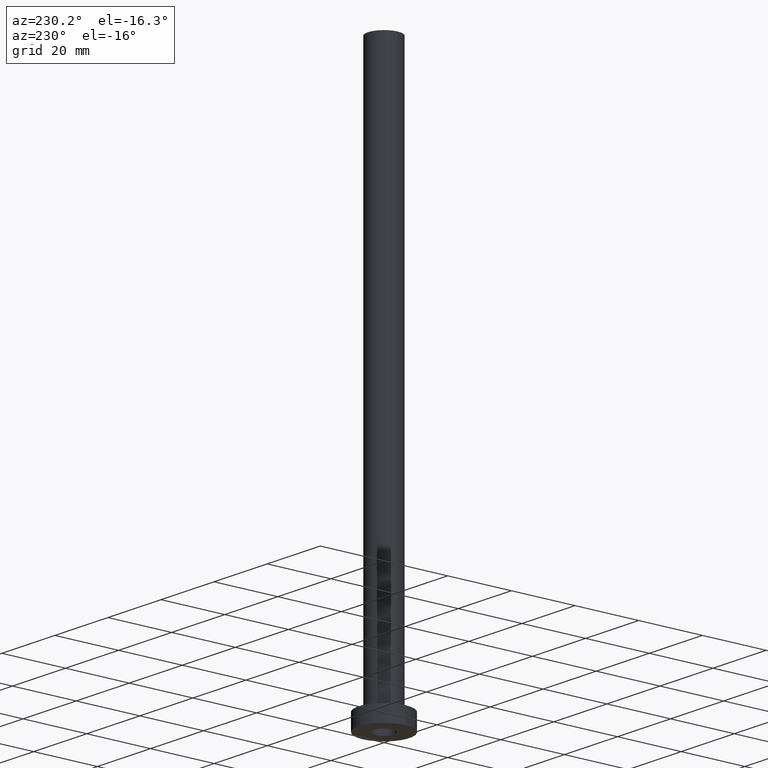
[diagram: clean part render]
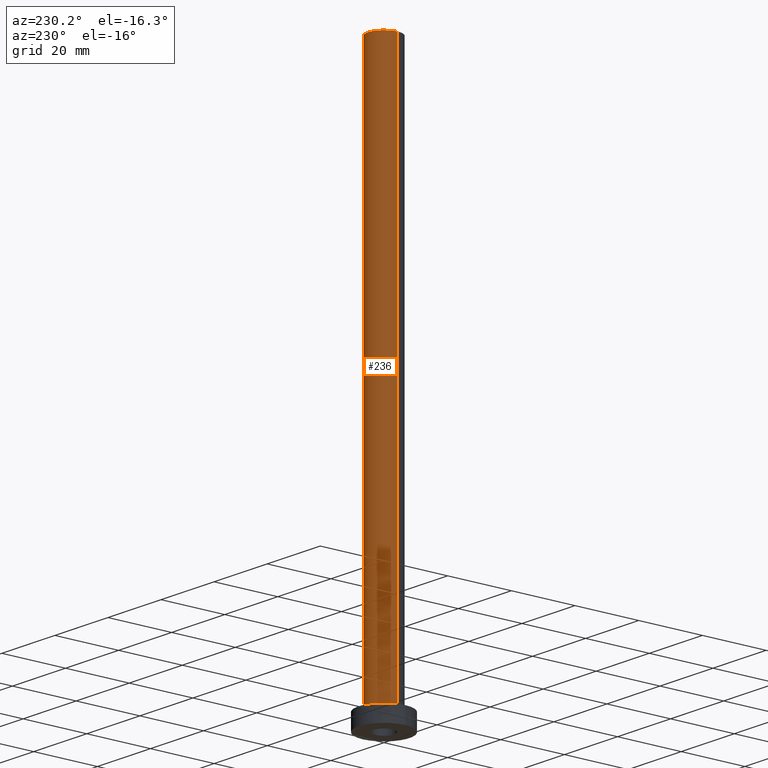
[diagram: same view with one face highlighted and labeled with its STEP entity id]
A machine part, auxiliary view. The second image highlights one B-rep face of the part: STEP entity #236.
In plain terms, the highlighted cylindrical surface (edge-blend (fillet) strip) has radius 5 mm, axis along (-0, -0, -1).
Its self-contained STEP definition (entity closure, byte-faithful):
#15 = DIRECTION ( 'NONE',  ( 0.000000000000000000, 0.000000000000000000, 1.000000000000000000 ) ) ;
#20 = ORIENTED_EDGE ( 'NONE', *, *, #306, .T. ) ;
#21 = CARTESIAN_POINT ( 'NONE',  ( 5.000000000000000000, 6.123233995736766282E-16, 175.0000000000000284 ) ) ;
#26 = EDGE_LOOP ( 'NONE', ( #192, #369, #20, #232 ) ) ;
#45 = CARTESIAN_POINT ( 'NONE',  ( -5.000000000000000000, 0.000000000000000000, 175.0000000000000284 ) ) ;
#50 = CARTESIAN_POINT ( 'NONE',  ( 0.000000000000000000, 0.000000000000000000, 175.0000000000000284 ) ) ;
#60 = CARTESIAN_POINT ( 'NONE',  ( -5.000000000000000000, 0.000000000000000000, 175.0000000000000284 ) ) ;
#62 = FACE_OUTER_BOUND ( 'NONE', #26, .T. ) ;
#93 = AXIS2_PLACEMENT_3D ( 'NONE', #420, #372, #336 ) ;
#115 = DIRECTION ( 'NONE',  ( -0.000000000000000000, -0.000000000000000000, -1.000000000000000000 ) ) ;
#127 = CARTESIAN_POINT ( 'NONE',  ( 0.000000000000000000, 0.000000000000000000, 5.500000000000005329 ) ) ;
#137 = CARTESIAN_POINT ( 'NONE',  ( 5.000000000000000000, 6.123233995736766282E-16, 5.500000000000005329 ) ) ;
#143 = CARTESIAN_POINT ( 'NONE',  ( -5.000000000000000000, 0.000000000000000000, 5.500000000000005329 ) ) ;
#159 = VERTEX_POINT ( 'NONE', #143 ) ;
#162 = EDGE_CURVE ( 'NONE', #246, #417, #285, .T. ) ;
#175 = EDGE_CURVE ( 'NONE', #246, #423, #270, .T. ) ;
#192 = ORIENTED_EDGE ( 'NONE', *, *, #175, .F. ) ;
#198 = DIRECTION ( 'NONE',  ( -0.000000000000000000, -0.000000000000000000, -1.000000000000000000 ) ) ;
#232 = ORIENTED_EDGE ( 'NONE', *, *, #251, .F. ) ;
#236 = ADVANCED_FACE ( 'NONE', ( #62 ), #276, .T. ) ;
#246 = VERTEX_POINT ( 'NONE', #21 ) ;
#251 = EDGE_CURVE ( 'NONE', #423, #159, #304, .T. ) ;
#264 = DIRECTION ( 'NONE',  ( 0.000000000000000000, 0.000000000000000000, 1.000000000000000000 ) ) ;
#270 = CIRCLE ( 'NONE', #387, 5.000000000000000000 ) ;
#276 = CYLINDRICAL_SURFACE ( 'NONE', #93, 5.000000000000000000 ) ;
#285 = LINE ( 'NONE', #427, #436 ) ;
#304 = LINE ( 'NONE', #60, #351 ) ;
#306 = EDGE_CURVE ( 'NONE', #417, #159, #388, .T. ) ;
#336 = DIRECTION ( 'NONE',  ( -1.000000000000000000, 0.000000000000000000, 0.000000000000000000 ) ) ;
#351 = VECTOR ( 'NONE', #198, 1000.000000000000000 ) ;
#365 = DIRECTION ( 'NONE',  ( 1.000000000000000000, 0.000000000000000000, 0.000000000000000000 ) ) ;
#369 = ORIENTED_EDGE ( 'NONE', *, *, #162, .T. ) ;
#372 = DIRECTION ( 'NONE',  ( -0.000000000000000000, -0.000000000000000000, -1.000000000000000000 ) ) ;
#387 = AXIS2_PLACEMENT_3D ( 'NONE', #50, #15, #365 ) ;
#388 = CIRCLE ( 'NONE', #415, 5.000000000000000000 ) ;
#408 = DIRECTION ( 'NONE',  ( 1.000000000000000000, 0.000000000000000000, 0.000000000000000000 ) ) ;
#415 = AXIS2_PLACEMENT_3D ( 'NONE', #127, #264, #408 ) ;
#417 = VERTEX_POINT ( 'NONE', #137 ) ;
#420 = CARTESIAN_POINT ( 'NONE',  ( 0.000000000000000000, 0.000000000000000000, 175.0000000000000284 ) ) ;
#423 = VERTEX_POINT ( 'NONE', #45 ) ;
#427 = CARTESIAN_POINT ( 'NONE',  ( 5.000000000000000000, 6.123233995736766282E-16, 175.0000000000000284 ) ) ;
#436 = VECTOR ( 'NONE', #115, 1000.000000000000000 ) ;